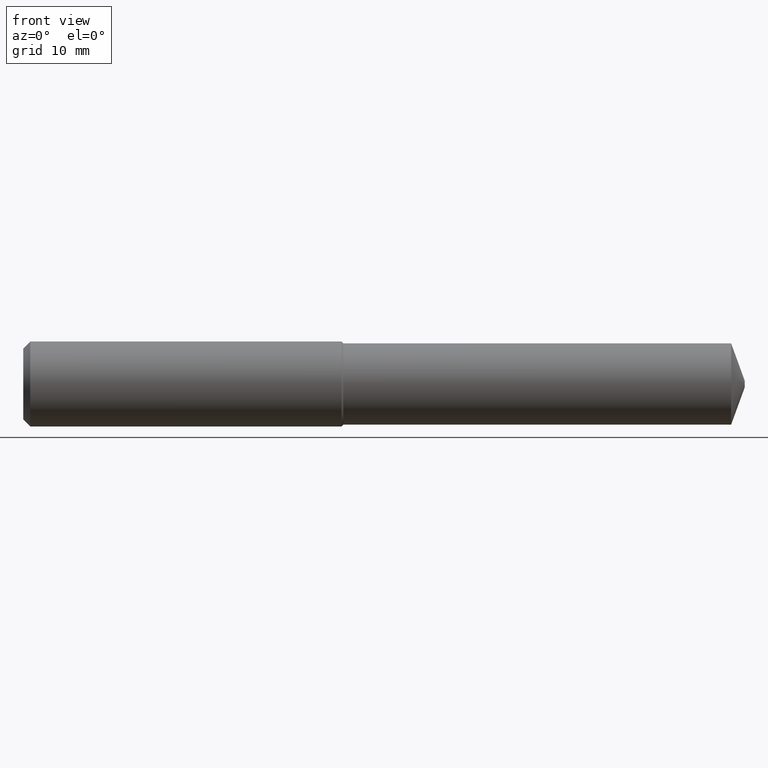
[diagram: clean part render]
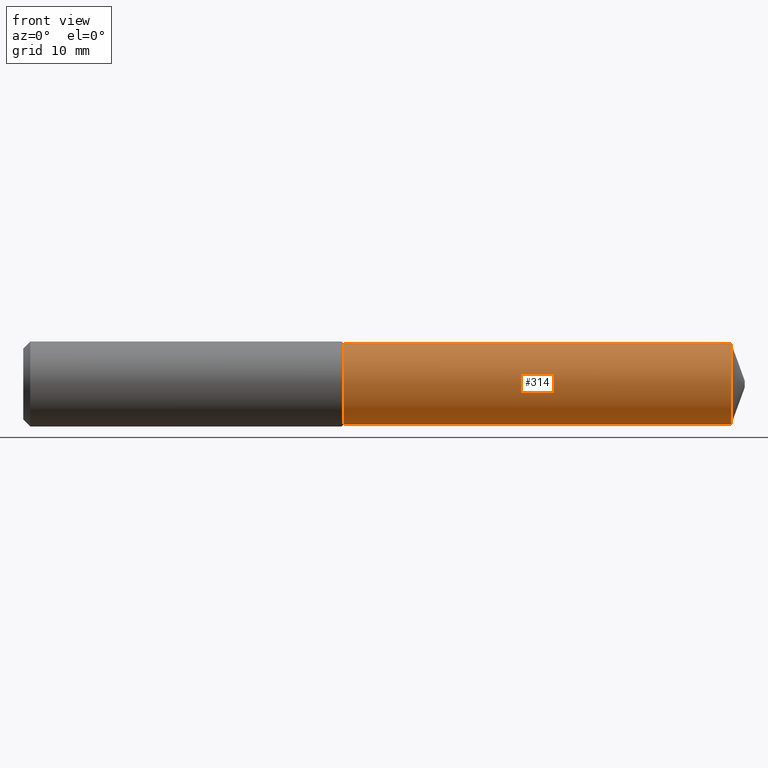
[diagram: same view with one face highlighted and labeled with its STEP entity id]
A machine part, front view. The second image highlights one B-rep face of the part: STEP entity #314.
In plain terms, the highlighted cylindrical surface (partial cylindrical patch) has radius 5.7404 mm, axis along (1, -0, -0).
Its self-contained STEP definition (entity closure, byte-faithful):
#9 = VERTEX_POINT ( 'NONE', #125 ) ;
#14 = ORIENTED_EDGE ( 'NONE', *, *, #58, .T. ) ;
#20 = CARTESIAN_POINT ( 'NONE',  ( 3.939860237651560126, 0.000000000000000000, 0.000000000000000000 ) ) ;
#21 = ORIENTED_EDGE ( 'NONE', *, *, #316, .T. ) ;
#31 = CARTESIAN_POINT ( 'NONE',  ( 1.781874015748031725, 2.767701766073021672E-17, 0.2260000000000002007 ) ) ;
#37 = DIRECTION ( 'NONE',  ( 0.000000000000000000, 0.000000000000000000, -1.000000000000000000 ) ) ;
#46 = EDGE_LOOP ( 'NONE', ( #361, #14, #21, #333 ) ) ;
#58 = EDGE_CURVE ( 'NONE', #261, #9, #259, .T. ) ;
#59 = DIRECTION ( 'NONE',  ( 0.000000000000000000, 0.000000000000000000, -1.000000000000000000 ) ) ;
#61 = VECTOR ( 'NONE', #176, 39.37007874015748143 ) ;
#70 = VERTEX_POINT ( 'NONE', #98 ) ;
#87 = LINE ( 'NONE', #320, #336 ) ;
#98 = CARTESIAN_POINT ( 'NONE',  ( 3.939860237651560126, 0.000000000000000000, 0.2260000000000005060 ) ) ;
#116 = FACE_OUTER_BOUND ( 'NONE', #46, .T. ) ;
#125 = CARTESIAN_POINT ( 'NONE',  ( 1.781874015748031725, 0.000000000000000000, -0.2260000000000002007 ) ) ;
#140 = LINE ( 'NONE', #266, #61 ) ;
#142 = DIRECTION ( 'NONE',  ( 1.000000000000000000, -0.000000000000000000, -0.000000000000000000 ) ) ;
#170 = CARTESIAN_POINT ( 'NONE',  ( -0.03808593750000075634, 0.000000000000000000, 0.000000000000000000 ) ) ;
#176 = DIRECTION ( 'NONE',  ( 1.000000000000000000, -0.000000000000000000, -0.000000000000000000 ) ) ;
#182 = AXIS2_PLACEMENT_3D ( 'NONE', #170, #142, #59 ) ;
#198 = CYLINDRICAL_SURFACE ( 'NONE', #182, 0.2260000000000003395 ) ;
#217 = CARTESIAN_POINT ( 'NONE',  ( 1.781874015748031725, 0.000000000000000000, 0.000000000000000000 ) ) ;
#236 = DIRECTION ( 'NONE',  ( 1.000000000000000000, -0.000000000000000000, -0.000000000000000000 ) ) ;
#242 = DIRECTION ( 'NONE',  ( 1.000000000000000000, -0.000000000000000000, -0.000000000000000000 ) ) ;
#259 = CIRCLE ( 'NONE', #279, 0.2260000000000002007 ) ;
#261 = VERTEX_POINT ( 'NONE', #31 ) ;
#263 = DIRECTION ( 'NONE',  ( 1.000000000000000000, -0.000000000000000000, -0.000000000000000000 ) ) ;
#266 = CARTESIAN_POINT ( 'NONE',  ( -0.03808593750000075634, 2.767701766073022289E-17, 0.2260000000000003395 ) ) ;
#278 = VERTEX_POINT ( 'NONE', #292 ) ;
#279 = AXIS2_PLACEMENT_3D ( 'NONE', #217, #242, #366 ) ;
#285 = AXIS2_PLACEMENT_3D ( 'NONE', #20, #236, #37 ) ;
#292 = CARTESIAN_POINT ( 'NONE',  ( 3.939860237651560126, 2.767701766073025062E-17, -0.2260000000000005060 ) ) ;
#314 = ADVANCED_FACE ( 'NONE', ( #116 ), #198, .T. ) ;
#316 = EDGE_CURVE ( 'NONE', #9, #278, #87, .T. ) ;
#320 = CARTESIAN_POINT ( 'NONE',  ( -0.03808593750000075634, 0.000000000000000000, -0.2260000000000003395 ) ) ;
#333 = ORIENTED_EDGE ( 'NONE', *, *, #372, .F. ) ;
#336 = VECTOR ( 'NONE', #263, 39.37007874015748143 ) ;
#360 = CIRCLE ( 'NONE', #285, 0.2260000000000004783 ) ;
#361 = ORIENTED_EDGE ( 'NONE', *, *, #371, .F. ) ;
#366 = DIRECTION ( 'NONE',  ( 0.000000000000000000, 0.000000000000000000, -1.000000000000000000 ) ) ;
#371 = EDGE_CURVE ( 'NONE', #261, #70, #140, .T. ) ;
#372 = EDGE_CURVE ( 'NONE', #70, #278, #360, .T. ) ;